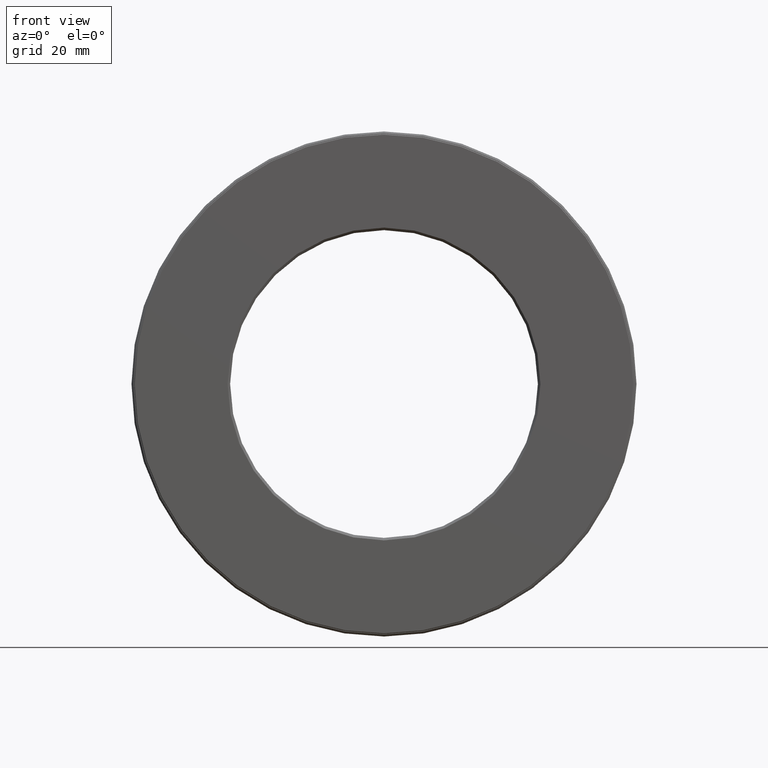
[diagram: clean part render]
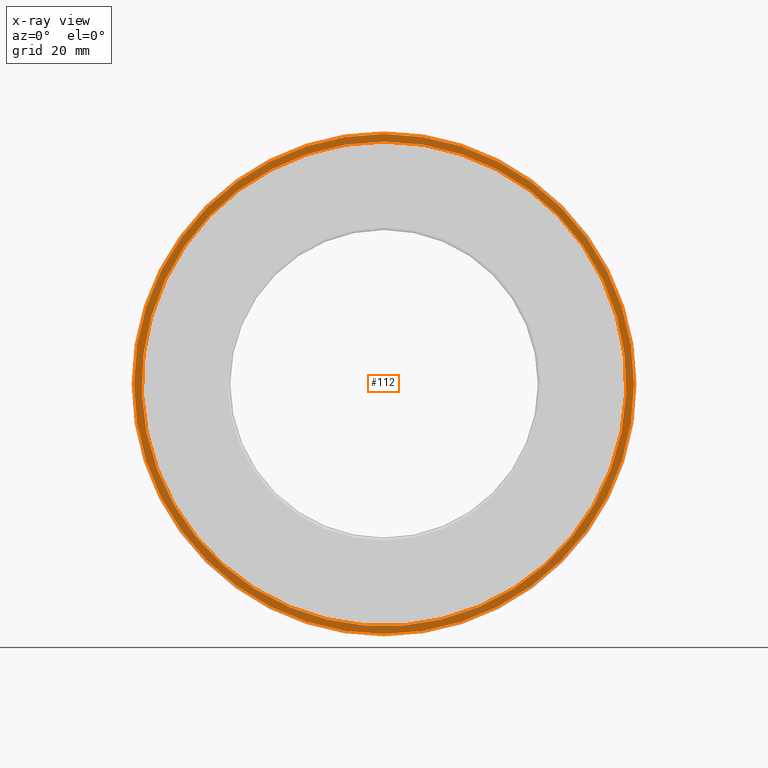
[diagram: x-ray — body ghosted, one internal face saturated and labeled with its STEP entity id]
A machine part, front view, then the same camera in x-ray: the body is ghosted and one INTERNAL B-rep face — a face not visible from any outside direction — is saturated and labeled: STEP entity #112.
In plain terms, the highlighted planar face has unit normal (-0, 1, 0).
Its self-contained STEP definition (entity closure, byte-faithful):
#1 = PLANE ( 'NONE',  #319 ) ;
#46 = CARTESIAN_POINT ( 'NONE',  ( 0.0000000000000000000, 1.215000000000000100, 0.0000000000000000000 ) ) ;
#49 = CARTESIAN_POINT ( 'NONE',  ( 0.0000000000000000000, 1.215000000000000100, 0.0000000000000000000 ) ) ;
#69 = EDGE_CURVE ( 'NONE', #203, #203, #394, .T. ) ;
#101 = EDGE_CURVE ( 'NONE', #239, #239, #225, .T. ) ;
#112 = ADVANCED_FACE ( 'NONE', ( #385, #482 ), #1, .F. ) ;
#192 = CARTESIAN_POINT ( 'NONE',  ( 0.0000000000000000000, 1.215000000000000100, 1.980000000000000000 ) ) ;
#200 = ORIENTED_EDGE ( 'NONE', *, *, #101, .T. ) ;
#203 = VERTEX_POINT ( 'NONE', #192 ) ;
#225 = CIRCLE ( 'NONE', #580, 1.919999999999999900 ) ;
#239 = VERTEX_POINT ( 'NONE', #337 ) ;
#319 = AXIS2_PLACEMENT_3D ( 'NONE', #46, #382, #430 ) ;
#328 = DIRECTION ( 'NONE',  ( 0.0000000000000000000, 0.0000000000000000000, 1.000000000000000000 ) ) ;
#337 = CARTESIAN_POINT ( 'NONE',  ( 0.0000000000000000000, 1.215000000000000100, 1.919999999999999900 ) ) ;
#339 = EDGE_LOOP ( 'NONE', ( #200 ) ) ;
#374 = DIRECTION ( 'NONE',  ( 0.0000000000000000000, 0.0000000000000000000, 1.000000000000000000 ) ) ;
#382 = DIRECTION ( 'NONE',  ( -0.0000000000000000000, 1.000000000000000000, 0.0000000000000000000 ) ) ;
#383 = DIRECTION ( 'NONE',  ( -0.0000000000000000000, 1.000000000000000000, -0.0000000000000000000 ) ) ;
#385 = FACE_OUTER_BOUND ( 'NONE', #432, .T. ) ;
#394 = CIRCLE ( 'NONE', #473, 1.980000000000000000 ) ;
#430 = DIRECTION ( 'NONE',  ( 0.0000000000000000000, 0.0000000000000000000, 1.000000000000000000 ) ) ;
#432 = EDGE_LOOP ( 'NONE', ( #484 ) ) ;
#433 = DIRECTION ( 'NONE',  ( -0.0000000000000000000, 1.000000000000000000, -0.0000000000000000000 ) ) ;
#473 = AXIS2_PLACEMENT_3D ( 'NONE', #49, #383, #328 ) ;
#482 = FACE_BOUND ( 'NONE', #339, .T. ) ;
#484 = ORIENTED_EDGE ( 'NONE', *, *, #69, .F. ) ;
#560 = CARTESIAN_POINT ( 'NONE',  ( 0.0000000000000000000, 1.215000000000000100, 0.0000000000000000000 ) ) ;
#580 = AXIS2_PLACEMENT_3D ( 'NONE', #560, #433, #374 ) ;